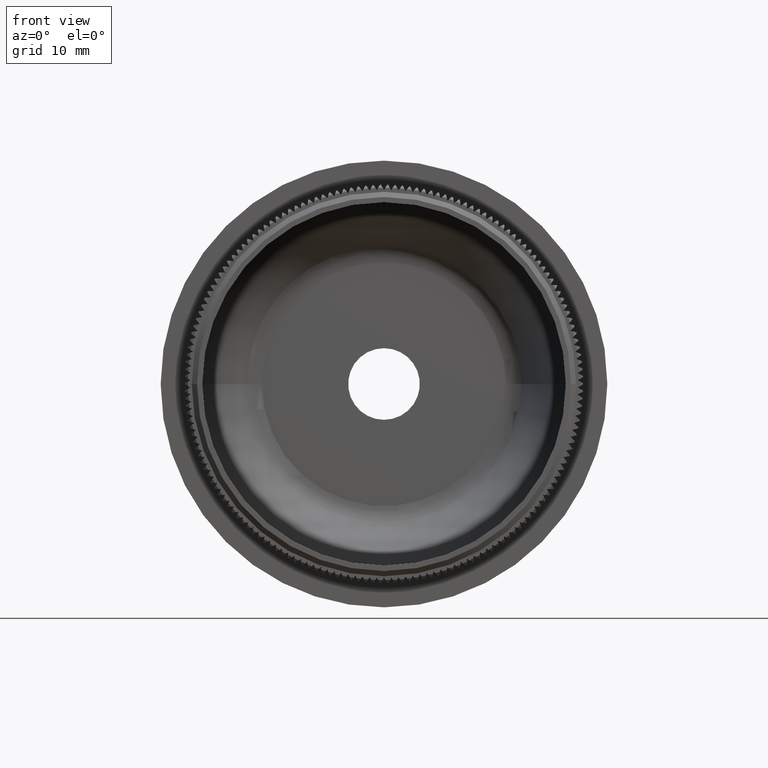
[diagram: clean part render]
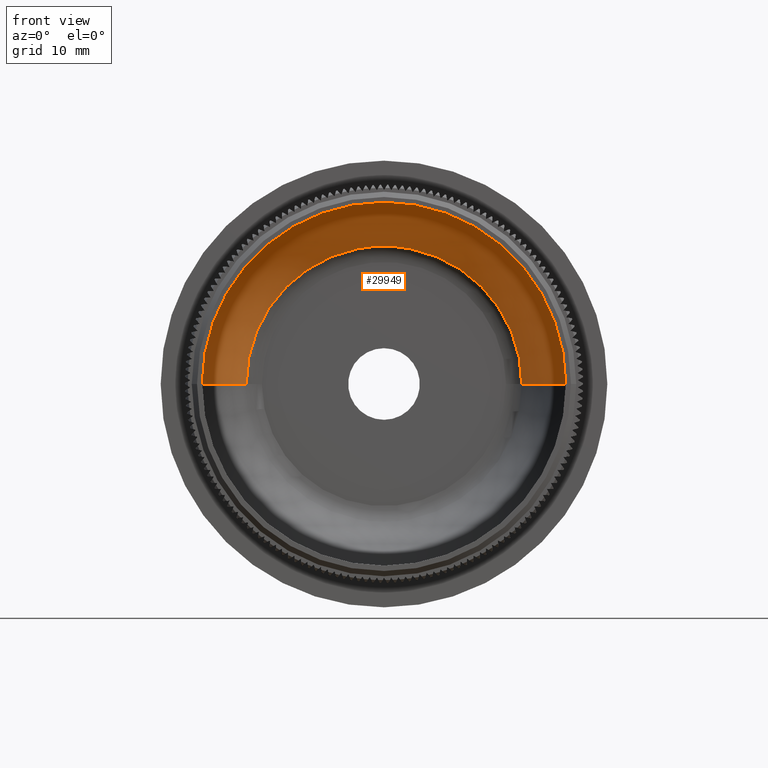
[diagram: same view with one face highlighted and labeled with its STEP entity id]
A machine part, front view. The second image highlights one B-rep face of the part: STEP entity #29949.
In plain terms, the highlighted spherical surface has radius 17.5 mm.
Its self-contained STEP definition (entity closure, byte-faithful):
#125 = CIRCLE ( 'NONE', #35866, 17.49999999999999600 ) ;
#1623 = DIRECTION ( 'NONE',  ( 1.000000000000000000, 0.0000000000000000000, 0.0000000000000000000 ) ) ;
#2147 = CARTESIAN_POINT ( 'NONE',  ( -1.800230794746609100E-015, 14.69999999999999900, 0.0000000000000000000 ) ) ;
#2837 = ORIENTED_EDGE ( 'NONE', *, *, #26678, .T. ) ;
#7407 = CIRCLE ( 'NONE', #11367, 17.49999999999999600 ) ;
#7443 = CARTESIAN_POINT ( 'NONE',  ( -2.021097791093718500E-014, 17.64745653063786100, 0.0000000000000000000 ) ) ;
#8396 = CARTESIAN_POINT ( 'NONE',  ( -1.800230794746609100E-015, 14.69999999999999900, 0.0000000000000000000 ) ) ;
#9360 = ORIENTED_EDGE ( 'NONE', *, *, #22316, .F. ) ;
#10021 = AXIS2_PLACEMENT_3D ( 'NONE', #7443, #15946, #16331 ) ;
#10548 = DIRECTION ( 'NONE',  ( 1.000000000000000000, 0.0000000000000000000, 0.0000000000000000000 ) ) ;
#10663 = DIRECTION ( 'NONE',  ( -1.224304257678195700E-016, 1.000000000000000000, -0.0000000000000000000 ) ) ;
#11182 = DIRECTION ( 'NONE',  ( -1.000000000000000000, 1.387778780781446100E-015, 0.0000000000000000000 ) ) ;
#11367 = AXIS2_PLACEMENT_3D ( 'NONE', #2147, #25759, #10548 ) ;
#12581 = ORIENTED_EDGE ( 'NONE', *, *, #20891, .T. ) ;
#13135 = CARTESIAN_POINT ( 'NONE',  ( -17.25000000000004600, 17.64745653063788600, 2.112515728529188400E-015 ) ) ;
#15088 = VERTEX_POINT ( 'NONE', #30110 ) ;
#15644 = VERTEX_POINT ( 'NONE', #35985 ) ;
#15946 = DIRECTION ( 'NONE',  ( -1.388827867340710000E-015, -1.000000000000000000, -0.0000000000000000000 ) ) ;
#16331 = DIRECTION ( 'NONE',  ( 1.000000000000000000, -1.407891516734798000E-015, 0.0000000000000000000 ) ) ;
#18013 = SPHERICAL_SURFACE ( 'NONE', #25828, 17.49999999999999600 ) ;
#20891 = EDGE_CURVE ( 'NONE', #15644, #15088, #33796, .T. ) ;
#21374 = CARTESIAN_POINT ( 'NONE',  ( 17.25000000000000400, 17.64745653063783900, 0.0000000000000000000 ) ) ;
#22192 = VERTEX_POINT ( 'NONE', #13135 ) ;
#22316 = EDGE_CURVE ( 'NONE', #15644, #22192, #7407, .T. ) ;
#23241 = DIRECTION ( 'NONE',  ( -1.224646799147353200E-016, 1.700823602305445300E-031, -1.000000000000000000 ) ) ;
#24400 = VERTEX_POINT ( 'NONE', #21374 ) ;
#25494 = CARTESIAN_POINT ( 'NONE',  ( -3.223978165369161200E-015, 26.32903225806455800, 0.0000000000000000000 ) ) ;
#25759 = DIRECTION ( 'NONE',  ( 0.0000000000000000000, -0.0000000000000000000, 1.000000000000000000 ) ) ;
#25828 = AXIS2_PLACEMENT_3D ( 'NONE', #28618, #28868, #11182 ) ;
#25917 = EDGE_LOOP ( 'NONE', ( #12581, #32481, #2837, #9360 ) ) ;
#26678 = EDGE_CURVE ( 'NONE', #24400, #22192, #32656, .T. ) ;
#28148 = AXIS2_PLACEMENT_3D ( 'NONE', #25494, #10663, #1623 ) ;
#28618 = CARTESIAN_POINT ( 'NONE',  ( -1.800230794746609100E-015, 14.69999999999999900, 0.0000000000000000000 ) ) ;
#28868 = DIRECTION ( 'NONE',  ( 0.0000000000000000000, 0.0000000000000000000, -1.000000000000000000 ) ) ;
#29949 = ADVANCED_FACE ( 'NONE', ( #31875 ), #18013, .F. ) ;
#30110 = CARTESIAN_POINT ( 'NONE',  ( 13.07729363212792800, 26.32903225806455800, -1.857011153669367900E-015 ) ) ;
#31875 = FACE_OUTER_BOUND ( 'NONE', #25917, .T. ) ;
#32481 = ORIENTED_EDGE ( 'NONE', *, *, #36924, .T. ) ;
#32656 = CIRCLE ( 'NONE', #10021, 17.25000000000002500 ) ;
#33796 = CIRCLE ( 'NONE', #28148, 13.07729363212793100 ) ;
#35866 = AXIS2_PLACEMENT_3D ( 'NONE', #8396, #23241, #37915 ) ;
#35985 = CARTESIAN_POINT ( 'NONE',  ( -13.07729363212793500, 26.32903225806455800, 0.0000000000000000000 ) ) ;
#36924 = EDGE_CURVE ( 'NONE', #15088, #24400, #125, .T. ) ;
#37915 = DIRECTION ( 'NONE',  ( -1.000000000000000000, 0.0000000000000000000, 1.224646799147353000E-016 ) ) ;